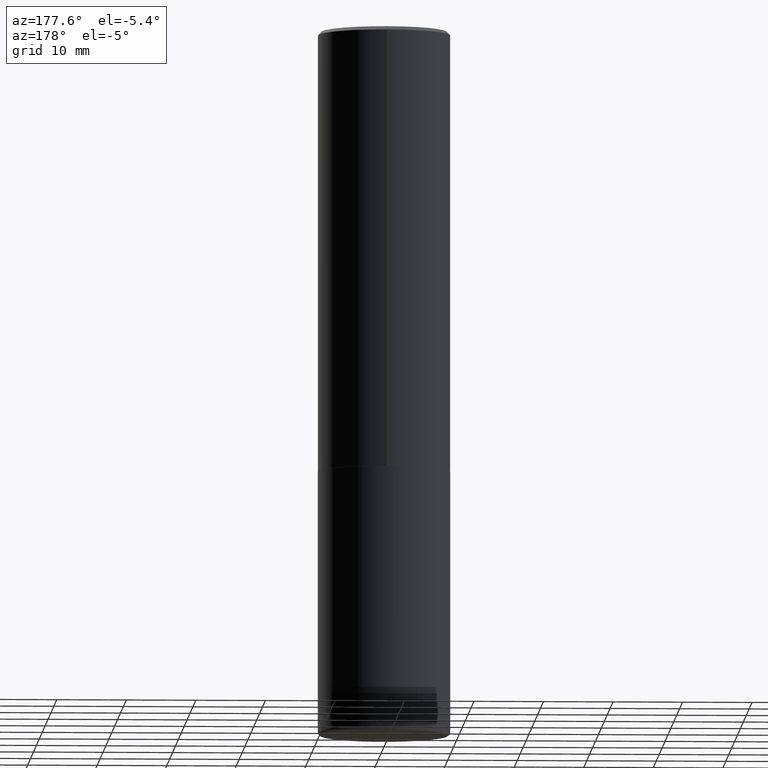
[diagram: clean part render]
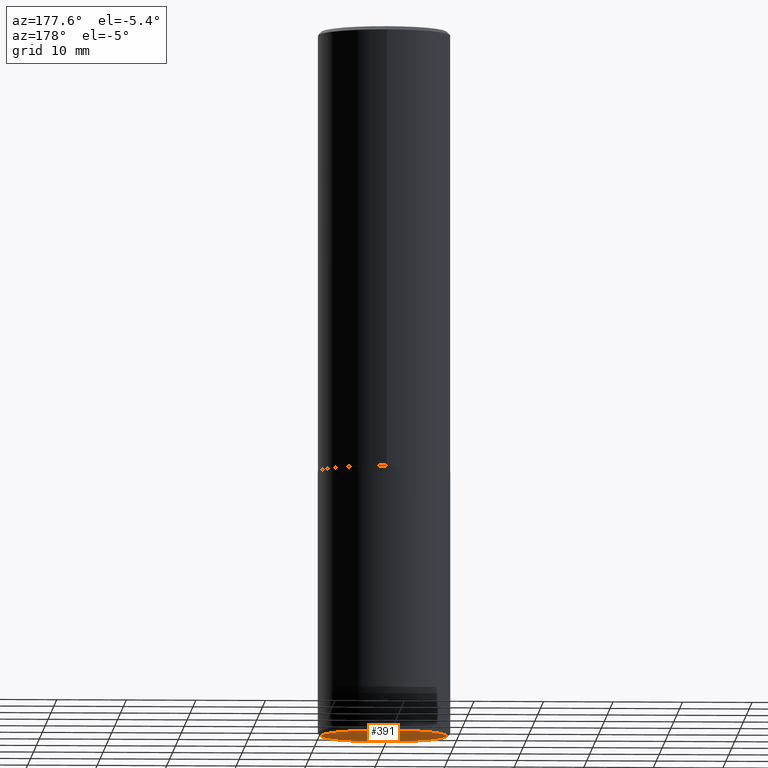
[diagram: same view with one face highlighted and labeled with its STEP entity id]
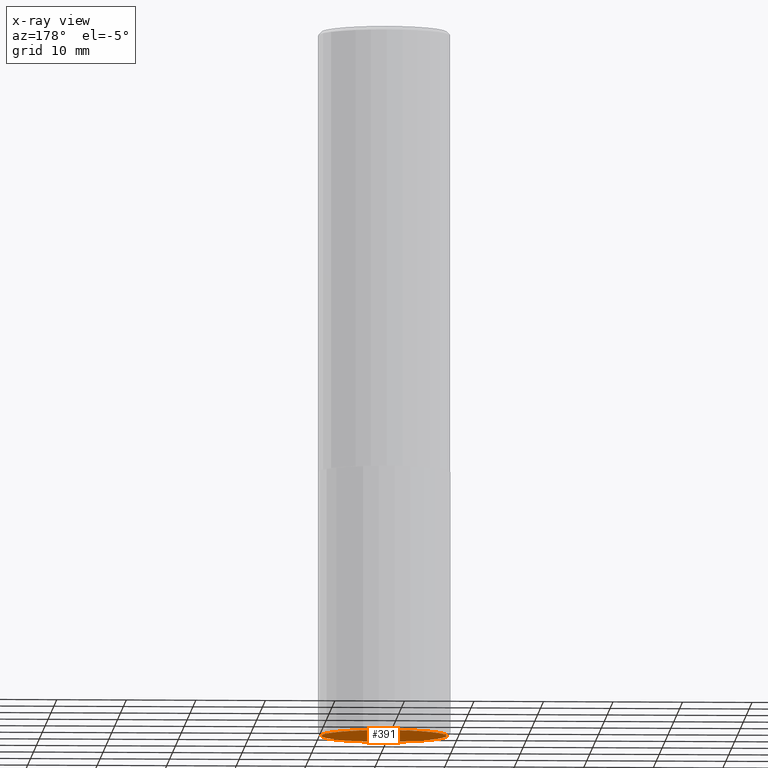
[diagram: x-ray of the same camera — body ghosted, the highlighted face saturated]
A machine part, auxiliary view. The second image highlights one B-rep face of the part: STEP entity #391.
The next image is the same camera in x-ray: the body ghosted, the highlighted face saturated — about 0% of this face is hidden behind the body in this view.
In plain terms, the highlighted planar face has unit normal (0, -0, -1).
Its self-contained STEP definition (entity closure, byte-faithful):
#46 = DIRECTION ( 'NONE',  ( 1.000000000000000000, -6.982962677686263555E-15, 0.000000000000000000 ) ) ;
#51 = ORIENTED_EDGE ( 'NONE', *, *, #152, .F. ) ;
#112 = DIRECTION ( 'NONE',  ( 2.438088387897960049E-29, -3.491481338843145188E-15, -1.000000000000000000 ) ) ;
#152 = EDGE_CURVE ( 'NONE', #278, #313, #345, .T. ) ;
#153 = CARTESIAN_POINT ( 'NONE',  ( 9.781875224740546387E-29, -1.396592535537258233E-14, -4.000000000000000000 ) ) ;
#165 = EDGE_LOOP ( 'NONE', ( #340, #51 ) ) ;
#171 = CARTESIAN_POINT ( 'NONE',  ( 9.781875224740546387E-29, -1.396592535537258233E-14, -4.000000000000000000 ) ) ;
#195 = EDGE_CURVE ( 'NONE', #313, #278, #354, .T. ) ;
#228 = DIRECTION ( 'NONE',  ( -2.445468806185136597E-29, 3.491481338843145583E-15, 1.000000000000000000 ) ) ;
#232 = CARTESIAN_POINT ( 'NONE',  ( 0.3550000000000000377, -1.644487710595120733E-14, -4.000000000000000000 ) ) ;
#234 = FACE_OUTER_BOUND ( 'NONE', #165, .T. ) ;
#259 = CARTESIAN_POINT ( 'NONE',  ( 9.781875224740546387E-29, -1.396592535537258233E-14, -4.000000000000000000 ) ) ;
#269 = AXIS2_PLACEMENT_3D ( 'NONE', #153, #112, #341 ) ;
#274 = PLANE ( 'NONE',  #269 ) ;
#278 = VERTEX_POINT ( 'NONE', #331 ) ;
#287 = AXIS2_PLACEMENT_3D ( 'NONE', #171, #228, #392 ) ;
#313 = VERTEX_POINT ( 'NONE', #232 ) ;
#331 = CARTESIAN_POINT ( 'NONE',  ( -0.3550000000000000377, -1.133752955645978664E-14, -4.000000000000000000 ) ) ;
#340 = ORIENTED_EDGE ( 'NONE', *, *, #195, .F. ) ;
#341 = DIRECTION ( 'NONE',  ( -1.000000000000000000, 6.982962677686265922E-15, -4.876176775795935793E-29 ) ) ;
#345 = CIRCLE ( 'NONE', #372, 0.3550000000000000377 ) ;
#354 = CIRCLE ( 'NONE', #287, 0.3550000000000000377 ) ;
#372 = AXIS2_PLACEMENT_3D ( 'NONE', #259, #397, #46 ) ;
#391 = ADVANCED_FACE ( 'NONE', ( #234 ), #274, .T. ) ;
#392 = DIRECTION ( 'NONE',  ( 1.000000000000000000, -6.982962677686263555E-15, 0.000000000000000000 ) ) ;
#397 = DIRECTION ( 'NONE',  ( -2.445468806185136597E-29, 3.491481338843145583E-15, 1.000000000000000000 ) ) ;